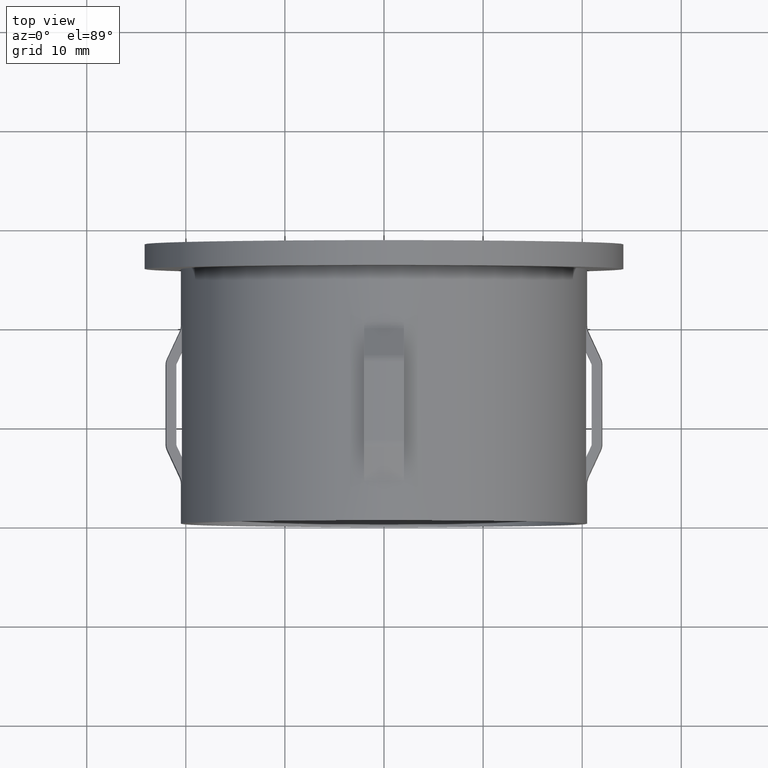
[diagram: clean part render]
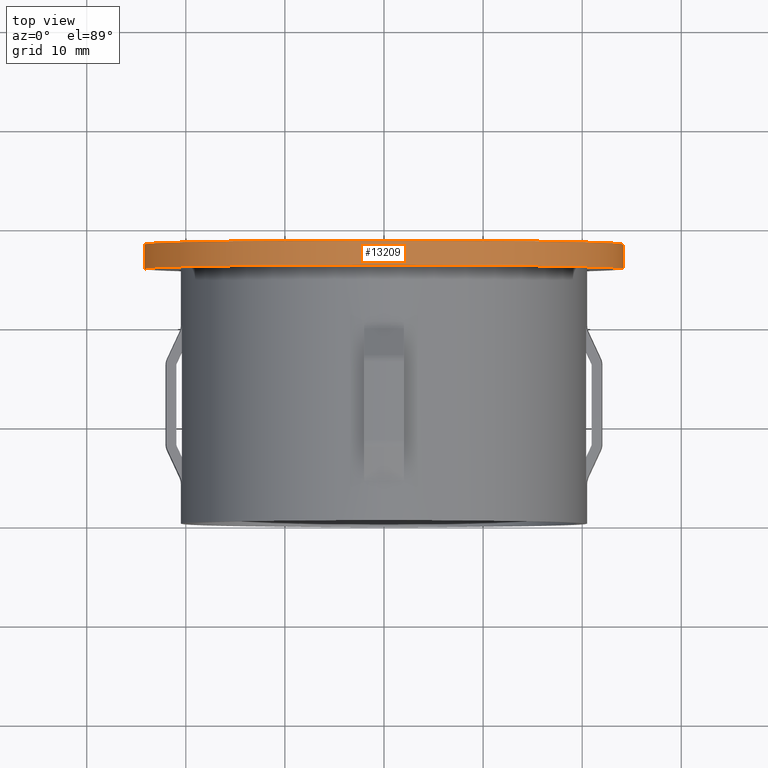
[diagram: same view with one face highlighted and labeled with its STEP entity id]
A machine part, top view. The second image highlights one B-rep face of the part: STEP entity #13209.
In plain terms, the highlighted cylindrical surface (partial cylindrical patch) has radius 24.15 mm, axis along (-0, 1, -0).
Its self-contained STEP definition (entity closure, byte-faithful):
#49 = ORIENTED_EDGE ( 'NONE', *, *, #6932, .T. ) ;
#237 = ORIENTED_EDGE ( 'NONE', *, *, #11054, .F. ) ;
#396 = LINE ( 'NONE', #9665, #9780 ) ;
#630 = DIRECTION ( 'NONE',  ( -1.714505518806297100E-016, 1.000000000000000000, -0.0000000000000000000 ) ) ;
#963 = AXIS2_PLACEMENT_3D ( 'NONE', #2058, #14708, #1950 ) ;
#1950 = DIRECTION ( 'NONE',  ( -1.000000000000000000, -1.436623996668163300E-016, 0.0000000000000000000 ) ) ;
#2019 = CARTESIAN_POINT ( 'NONE',  ( -24.14999999999999900, 28.19999999999999600, 0.0000000000000000000 ) ) ;
#2058 = CARTESIAN_POINT ( 'NONE',  ( -2.449293598294701500E-016, 28.19999999999999600, 0.0000000000000000000 ) ) ;
#2767 = CARTESIAN_POINT ( 'NONE',  ( 24.14999999999999900, 25.69999999999999900, 2.957522019940857900E-015 ) ) ;
#3019 = CARTESIAN_POINT ( 'NONE',  ( -2.449293598294708900E-016, 28.19999999999999900, 0.0000000000000000000 ) ) ;
#3033 = CARTESIAN_POINT ( 'NONE',  ( 24.14999999999999900, 28.19999999999999900, 2.957522019940857900E-015 ) ) ;
#3144 = DIRECTION ( 'NONE',  ( -1.000000000000000000, -1.436623996668163300E-016, 0.0000000000000000000 ) ) ;
#3966 = ORIENTED_EDGE ( 'NONE', *, *, #10061, .F. ) ;
#4355 = CYLINDRICAL_SURFACE ( 'NONE', #13763, 24.14999999999999900 ) ;
#4361 = DIRECTION ( 'NONE',  ( -1.714505518806297100E-016, 1.000000000000000000, -0.0000000000000000000 ) ) ;
#4617 = DIRECTION ( 'NONE',  ( -1.714505518806297100E-016, 1.000000000000000000, -0.0000000000000000000 ) ) ;
#4699 = AXIS2_PLACEMENT_3D ( 'NONE', #5821, #630, #6862 ) ;
#4872 = CARTESIAN_POINT ( 'NONE',  ( -24.14999999999999900, 28.19999999999999200, 0.0000000000000000000 ) ) ;
#5821 = CARTESIAN_POINT ( 'NONE',  ( 1.836970198721039300E-016, 25.69999999999999600, 0.0000000000000000000 ) ) ;
#5853 = VERTEX_POINT ( 'NONE', #3033 ) ;
#6704 = CIRCLE ( 'NONE', #963, 24.14999999999999900 ) ;
#6749 = CIRCLE ( 'NONE', #4699, 24.14999999999999900 ) ;
#6862 = DIRECTION ( 'NONE',  ( -1.000000000000000000, -1.436623996668163300E-016, 0.0000000000000000000 ) ) ;
#6932 = EDGE_CURVE ( 'NONE', #12815, #5853, #396, .T. ) ;
#7098 = LINE ( 'NONE', #2019, #15840 ) ;
#7325 = EDGE_CURVE ( 'NONE', #16348, #12815, #6749, .T. ) ;
#8117 = FACE_OUTER_BOUND ( 'NONE', #15543, .T. ) ;
#9665 = CARTESIAN_POINT ( 'NONE',  ( 24.14999999999999900, 28.20000000000000300, 2.957522019940857900E-015 ) ) ;
#9702 = VERTEX_POINT ( 'NONE', #4872 ) ;
#9780 = VECTOR ( 'NONE', #4617, 1000.000000000000000 ) ;
#10061 = EDGE_CURVE ( 'NONE', #9702, #5853, #6704, .T. ) ;
#10655 = DIRECTION ( 'NONE',  ( -1.714505518806297100E-016, 1.000000000000000000, -0.0000000000000000000 ) ) ;
#11054 = EDGE_CURVE ( 'NONE', #16348, #9702, #7098, .T. ) ;
#12815 = VERTEX_POINT ( 'NONE', #2767 ) ;
#13209 = ADVANCED_FACE ( 'NONE', ( #8117 ), #4355, .T. ) ;
#13763 = AXIS2_PLACEMENT_3D ( 'NONE', #3019, #4361, #3144 ) ;
#14708 = DIRECTION ( 'NONE',  ( -1.714505518806297100E-016, 1.000000000000000000, -0.0000000000000000000 ) ) ;
#15543 = EDGE_LOOP ( 'NONE', ( #15839, #49, #3966, #237 ) ) ;
#15695 = CARTESIAN_POINT ( 'NONE',  ( -24.14999999999999900, 25.69999999999999200, 0.0000000000000000000 ) ) ;
#15839 = ORIENTED_EDGE ( 'NONE', *, *, #7325, .T. ) ;
#15840 = VECTOR ( 'NONE', #10655, 1000.000000000000000 ) ;
#16348 = VERTEX_POINT ( 'NONE', #15695 ) ;